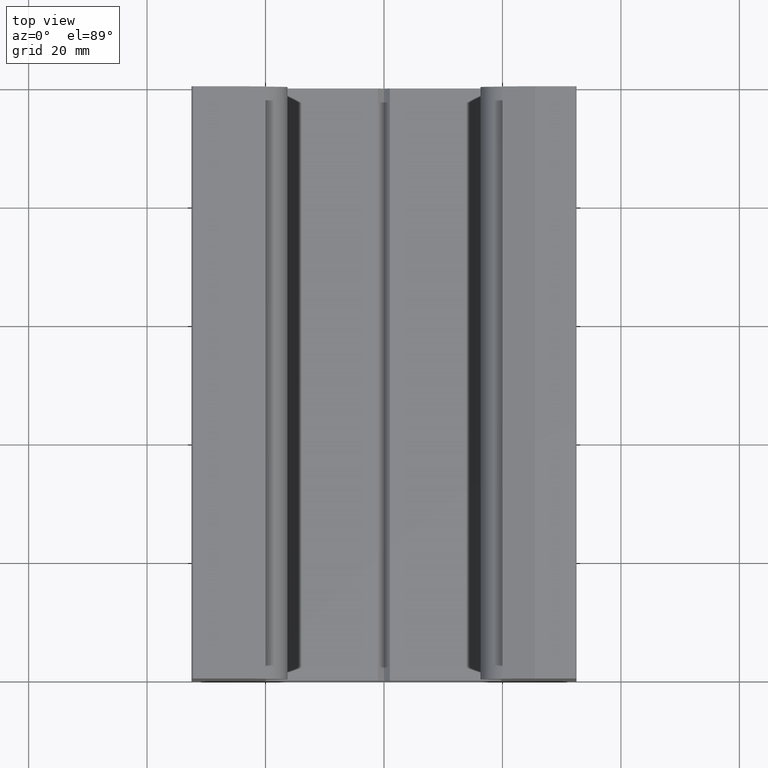
[diagram: clean part render]
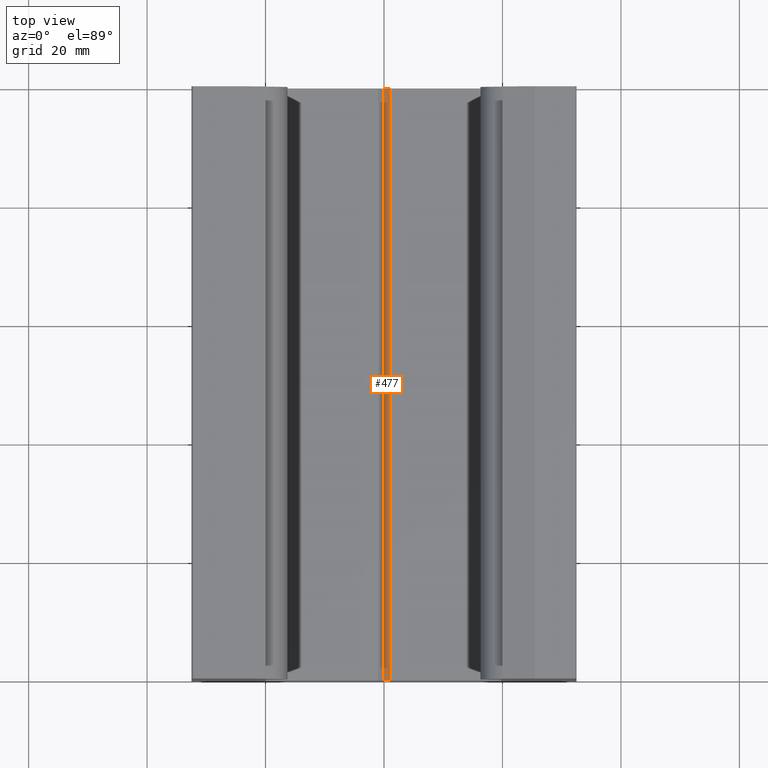
[diagram: same view with one face highlighted and labeled with its STEP entity id]
A machine part, top view. The second image highlights one B-rep face of the part: STEP entity #477.
In plain terms, the highlighted planar face has unit normal (-0.7071, 0, 0.7071).
Its self-contained STEP definition (entity closure, byte-faithful):
#20=PLANE('',#533);
#41=FACE_OUTER_BOUND('',#66,.T.);
#66=EDGE_LOOP('',(#358,#359,#360,#361));
#120=LINE('',#759,#173);
#121=LINE('',#762,#174);
#122=LINE('',#764,#175);
#123=LINE('',#765,#176);
#173=VECTOR('',#617,10.);
#174=VECTOR('',#620,10.);
#175=VECTOR('',#621,10.);
#176=VECTOR('',#622,10.);
#225=VERTEX_POINT('',#755);
#226=VERTEX_POINT('',#757);
#227=VERTEX_POINT('',#761);
#228=VERTEX_POINT('',#763);
#280=EDGE_CURVE('',#225,#226,#120,.T.);
#281=EDGE_CURVE('',#227,#225,#121,.T.);
#282=EDGE_CURVE('',#228,#226,#122,.T.);
#283=EDGE_CURVE('',#227,#228,#123,.T.);
#358=ORIENTED_EDGE('',*,*,#281,.T.);
#359=ORIENTED_EDGE('',*,*,#280,.T.);
#360=ORIENTED_EDGE('',*,*,#282,.F.);
#361=ORIENTED_EDGE('',*,*,#283,.F.);
#477=ADVANCED_FACE('',(#41),#20,.T.);
#533=AXIS2_PLACEMENT_3D('',#760,#618,#619);
#617=DIRECTION('',(0.,1.,0.));
#618=DIRECTION('center_axis',(-0.70710677206149,0.,0.707106790311605));
#619=DIRECTION('ref_axis',(0.707106790311605,0.,0.70710677206149));
#620=DIRECTION('',(0.707106790311605,0.,0.70710677206149));
#621=DIRECTION('',(0.707106790311605,0.,0.70710677206149));
#622=DIRECTION('',(0.,1.,0.));
#755=CARTESIAN_POINT('',(1.00000002580957,0.,-6.));
#757=CARTESIAN_POINT('',(1.00000002580957,100.,-6.));
#759=CARTESIAN_POINT('',(1.00000002580957,0.,-6.));
#760=CARTESIAN_POINT('Origin',(0.,0.,-7.00000000000001));
#761=CARTESIAN_POINT('',(0.,0.,-7.00000000000001));
#762=CARTESIAN_POINT('',(0.,0.,-7.00000000000001));
#763=CARTESIAN_POINT('',(0.,100.,-7.00000000000001));
#764=CARTESIAN_POINT('',(0.,100.,-7.00000000000001));
#765=CARTESIAN_POINT('',(0.,0.,-7.00000000000001));